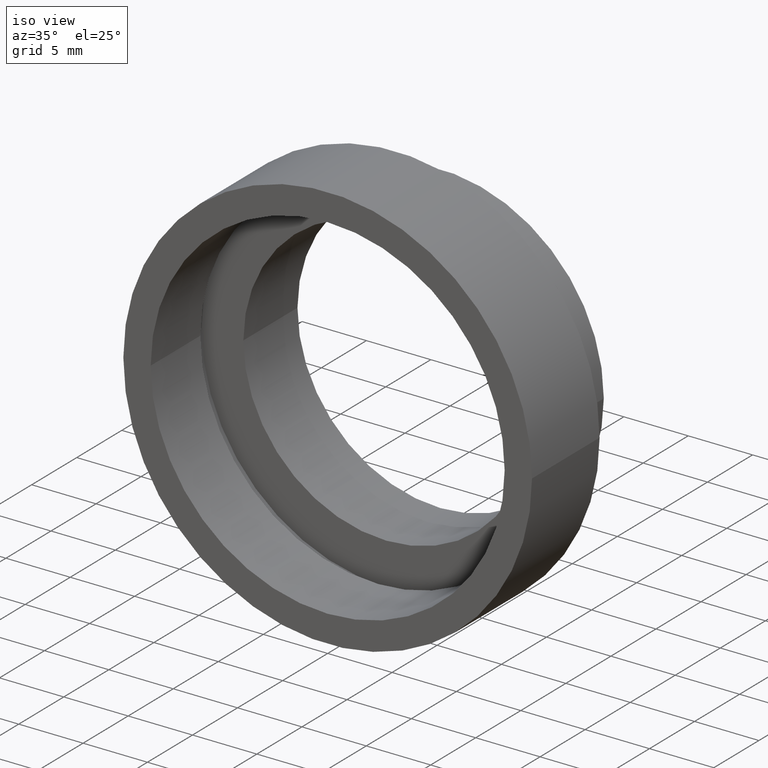
[diagram: clean part render]
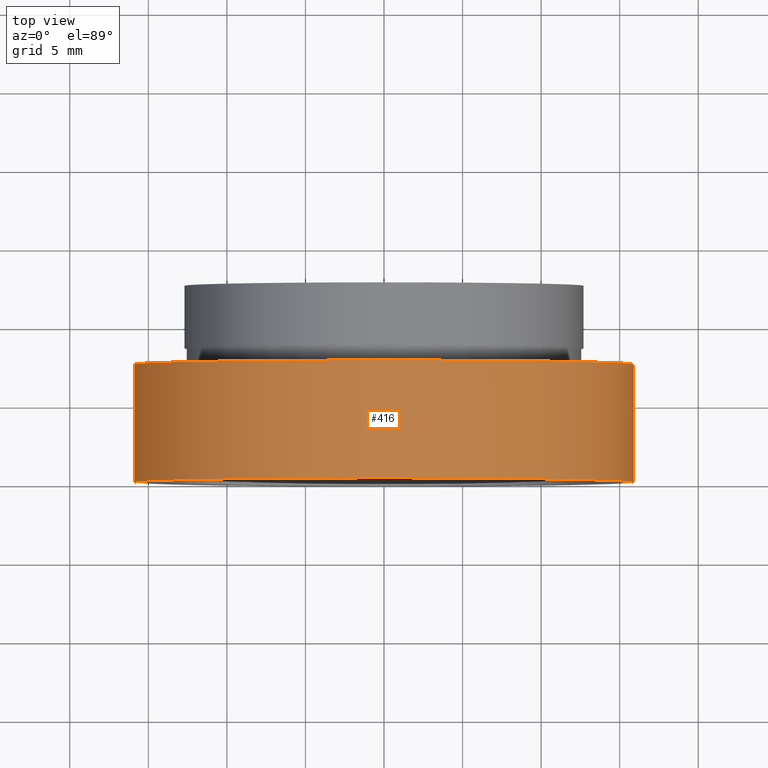
[diagram: tour spotlight — one face highlighted and labeled with its STEP entity id]
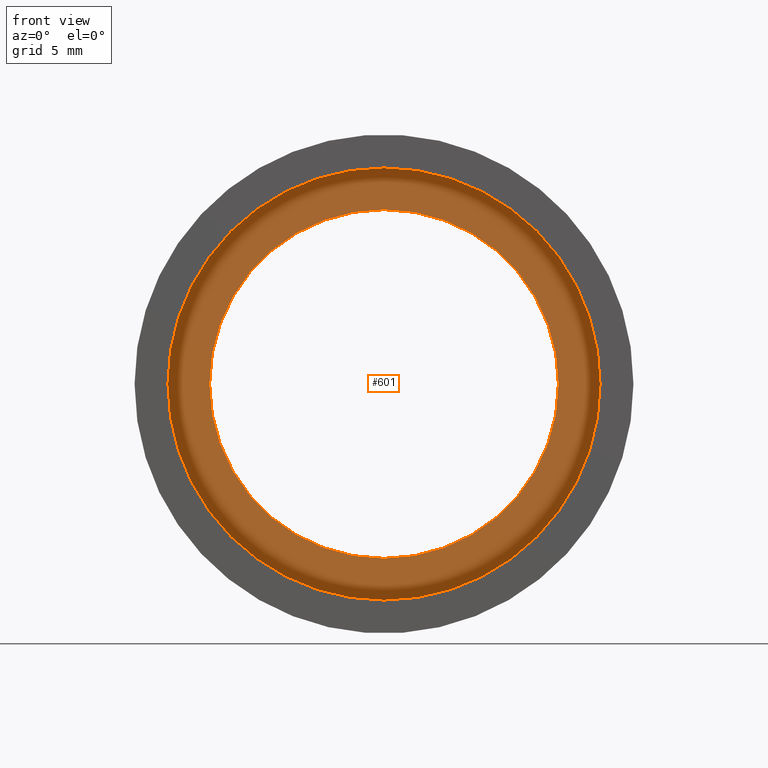
[diagram: tour spotlight — one face highlighted and labeled with its STEP entity id]
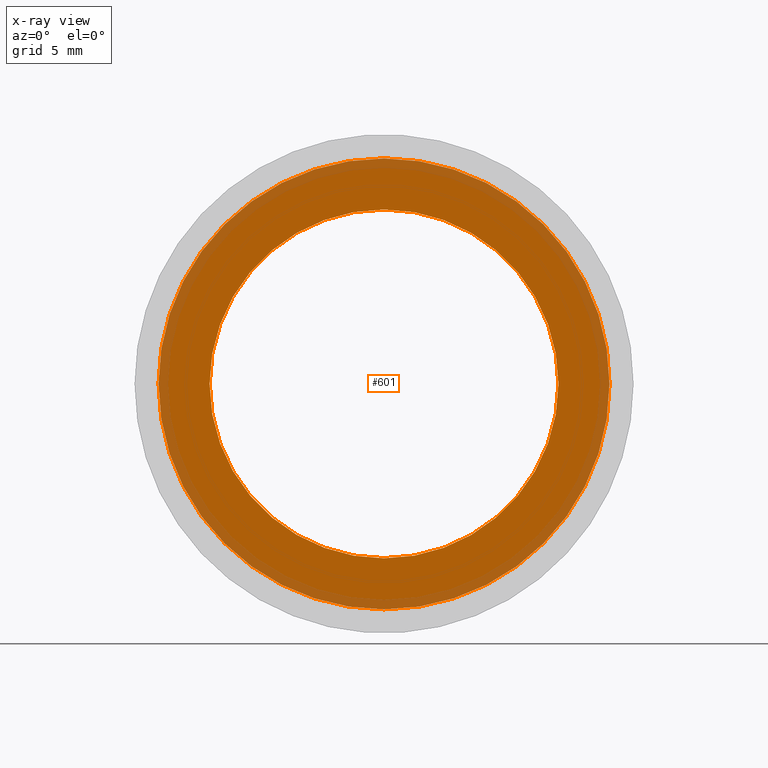
[diagram: x-ray of the same camera — body ghosted, this tour face saturated]
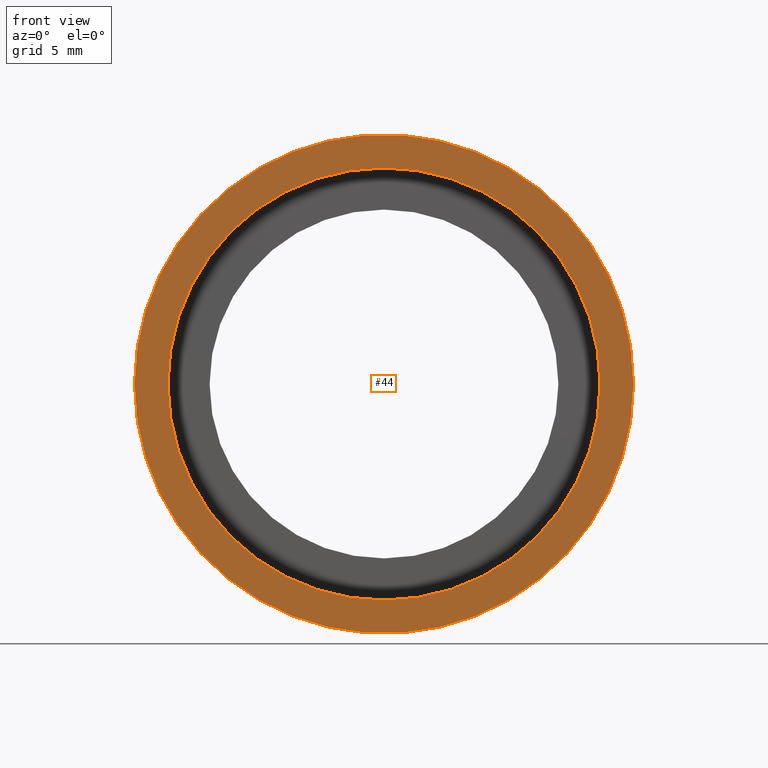
[diagram: tour spotlight — one face highlighted and labeled with its STEP entity id]
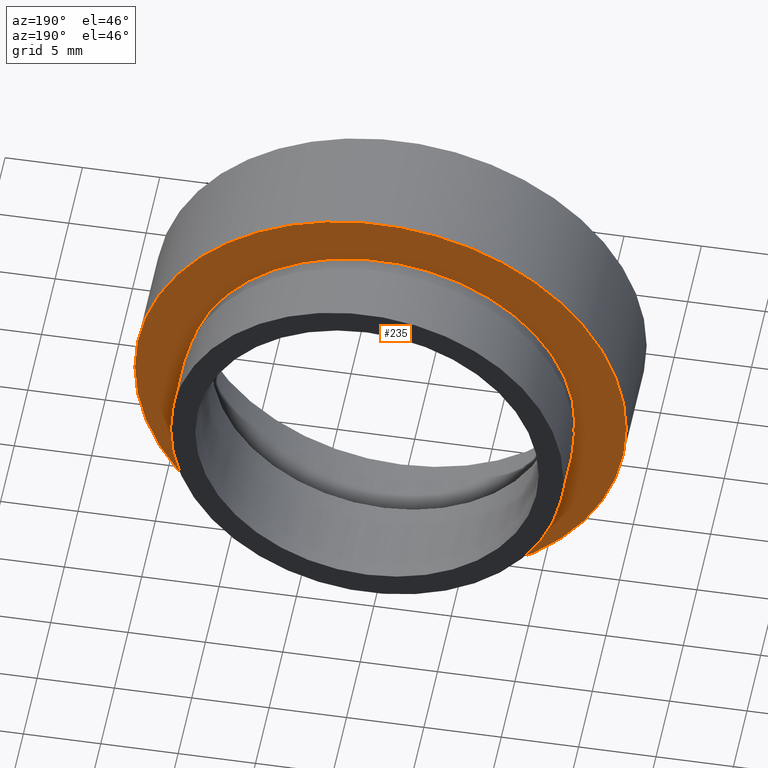
[diagram: tour spotlight — one face highlighted and labeled with its STEP entity id]
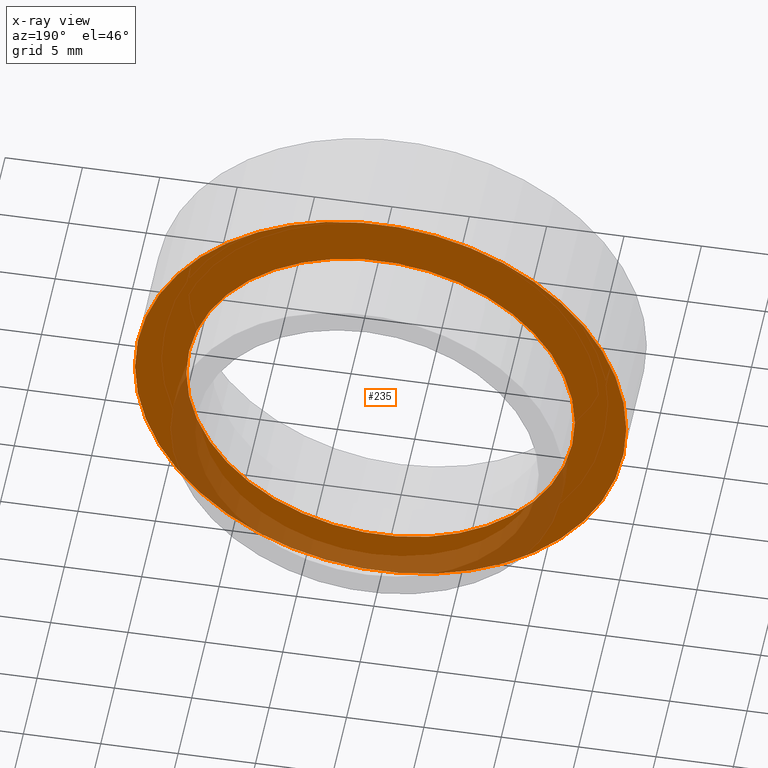
[diagram: x-ray of the same camera — body ghosted, this tour face saturated]
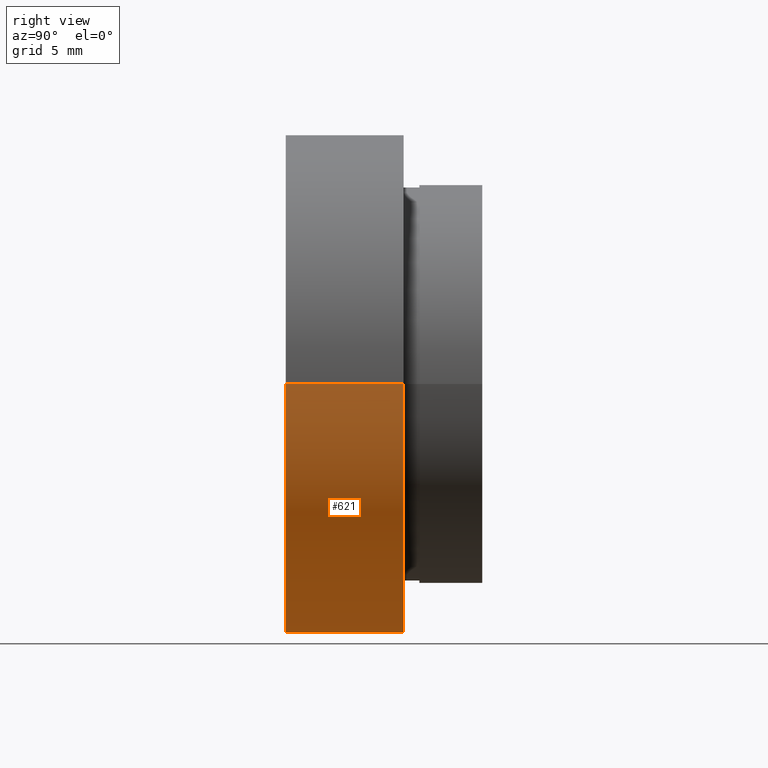
[diagram: tour spotlight — one face highlighted and labeled with its STEP entity id]
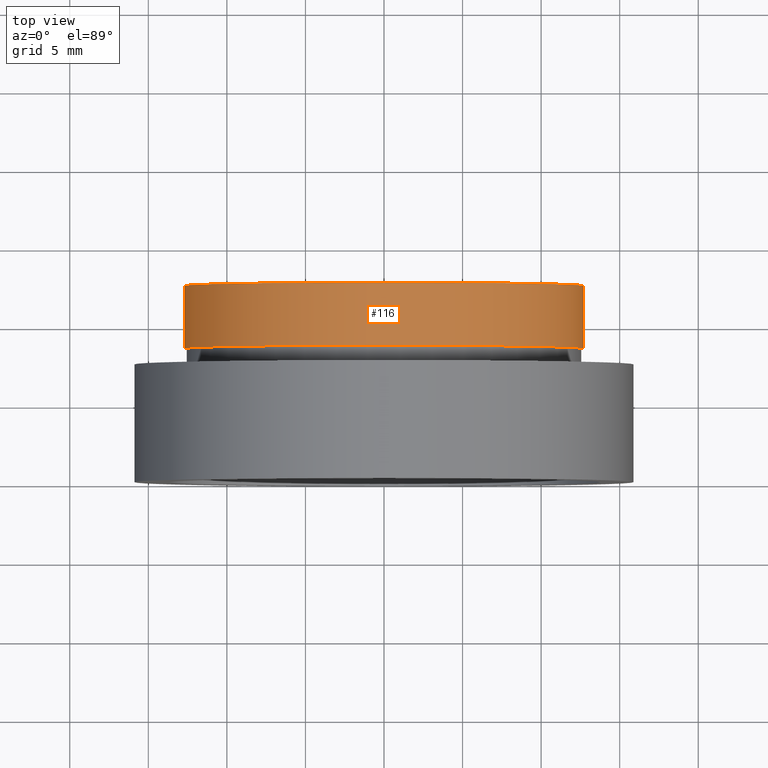
[diagram: tour spotlight — one face highlighted and labeled with its STEP entity id]
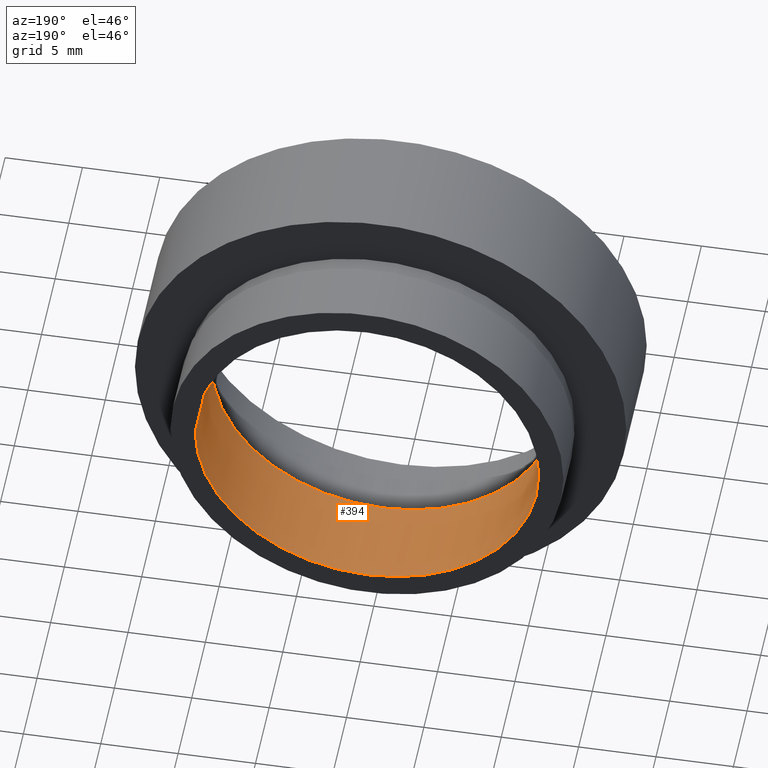
[diagram: tour spotlight — one face highlighted and labeled with its STEP entity id]
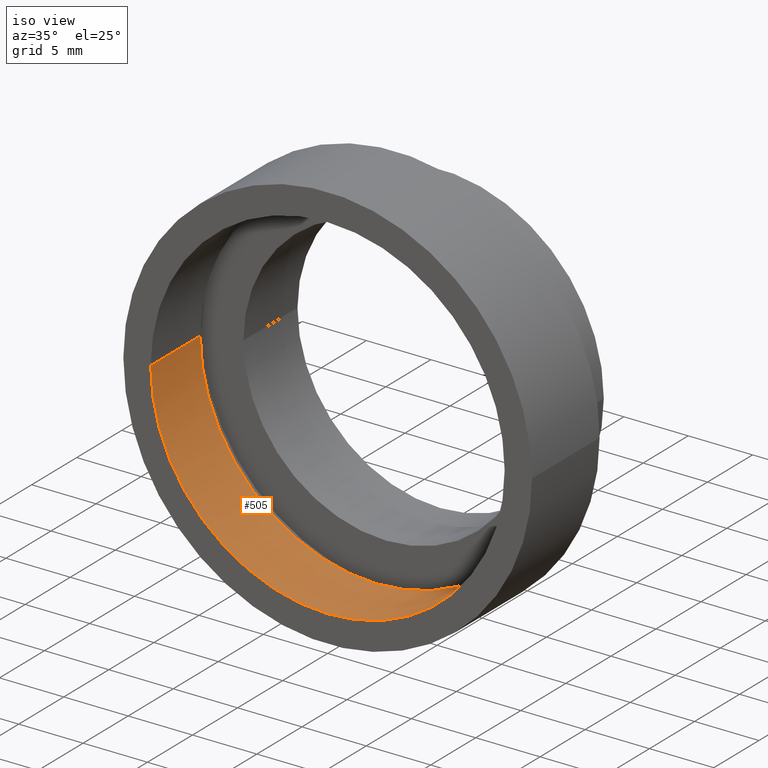
[diagram: tour spotlight — one face highlighted and labeled with its STEP entity id]
A machine part: a face-by-face anatomy tour. The part has 18 B-rep faces; the first image is the clean iso view, then the 8 largest visible faces are spotlighted one at a time (largest first), each with its STEP entity span.

Face 1 — top view, entity #416. In plain terms, the highlighted cylindrical surface (partial cylindrical patch) has radius 15.875 mm, axis along (-0, 1, -0).
Definition (entity closure, byte-faithful):
#27 = DIRECTION ( 'NONE',  ( -1.000000000000000000, -2.185478394931410600E-016, 0.0000000000000000000 ) ) ;
#40 = DIRECTION ( 'NONE',  ( -1.000000000000000000, -1.224646799147350700E-016, 0.0000000000000000000 ) ) ;
#53 = EDGE_CURVE ( 'NONE', #164, #135, #267, .T. ) ;
#74 = DIRECTION ( 'NONE',  ( -1.224646799147351000E-016, 1.000000000000000000, -0.0000000000000000000 ) ) ;
#85 = EDGE_CURVE ( 'NONE', #279, #135, #240, .T. ) ;
#114 = CARTESIAN_POINT ( 'NONE',  ( -15.87500000000000000, 16.88601823708207300, 0.0000000000000000000 ) ) ;
#117 = DIRECTION ( 'NONE',  ( -1.000000000000000000, -1.092739197465705300E-016, 0.0000000000000000000 ) ) ;
#125 = ORIENTED_EDGE ( 'NONE', *, *, #393, .F. ) ;
#135 = VERTEX_POINT ( 'NONE', #606 ) ;
#149 = AXIS2_PLACEMENT_3D ( 'NONE', #559, #324, #117 ) ;
#152 = LINE ( 'NONE', #114, #402 ) ;
#159 = ORIENTED_EDGE ( 'NONE', *, *, #53, .T. ) ;
#164 = VERTEX_POINT ( 'NONE', #445 ) ;
#202 = CARTESIAN_POINT ( 'NONE',  ( 2.067940818438636500E-015, -3.469446951953614200E-015, 0.0000000000000000000 ) ) ;
#228 = CARTESIAN_POINT ( 'NONE',  ( 15.87500000000000000, 16.88601823708208000, 1.944126793646423200E-015 ) ) ;
#233 = ORIENTED_EDGE ( 'NONE', *, *, #85, .F. ) ;
#237 = DIRECTION ( 'NONE',  ( -1.224646799147351000E-016, 1.000000000000000000, -0.0000000000000000000 ) ) ;
#240 = CIRCLE ( 'NONE', #149, 15.87500000000000000 ) ;
#247 = VECTOR ( 'NONE', #237, 1000.000000000000000 ) ;
#267 = LINE ( 'NONE', #228, #247 ) ;
#279 = VERTEX_POINT ( 'NONE', #591 ) ;
#317 = CARTESIAN_POINT ( 'NONE',  ( 0.0000000000000000000, 16.88601823708207700, 0.0000000000000000000 ) ) ;
#324 = DIRECTION ( 'NONE',  ( -1.224646799147351000E-016, 1.000000000000000000, -0.0000000000000000000 ) ) ;
#393 = EDGE_CURVE ( 'NONE', #425, #279, #152, .T. ) ;
#402 = VECTOR ( 'NONE', #491, 1000.000000000000000 ) ;
#416 = ADVANCED_FACE ( 'NONE', ( #462 ), #452, .T. ) ;
#420 = CARTESIAN_POINT ( 'NONE',  ( -15.87499999999999300, -5.413573745600033100E-015, 0.0000000000000000000 ) ) ;
#424 = AXIS2_PLACEMENT_3D ( 'NONE', #317, #534, #27 ) ;
#425 = VERTEX_POINT ( 'NONE', #420 ) ;
#445 = CARTESIAN_POINT ( 'NONE',  ( 15.87500000000000000, -1.525320158307194900E-015, 1.944126793646423200E-015 ) ) ;
#452 = CYLINDRICAL_SURFACE ( 'NONE', #424, 15.87500000000000000 ) ;
#462 = FACE_OUTER_BOUND ( 'NONE', #502, .T. ) ;
#491 = DIRECTION ( 'NONE',  ( -1.224646799147351000E-016, 1.000000000000000000, -0.0000000000000000000 ) ) ;
#502 = EDGE_LOOP ( 'NONE', ( #552, #159, #233, #125 ) ) ;
#508 = CIRCLE ( 'NONE', #547, 15.87499999999999600 ) ;
#514 = EDGE_CURVE ( 'NONE', #425, #164, #508, .T. ) ;
#534 = DIRECTION ( 'NONE',  ( -1.224646799147351000E-016, 1.000000000000000000, -0.0000000000000000000 ) ) ;
#547 = AXIS2_PLACEMENT_3D ( 'NONE', #202, #74, #40 ) ;
#552 = ORIENTED_EDGE ( 'NONE', *, *, #514, .T. ) ;
#559 = CARTESIAN_POINT ( 'NONE',  ( 1.149455719078122700E-015, 7.499999999999998200, 0.0000000000000000000 ) ) ;
#591 = CARTESIAN_POINT ( 'NONE',  ( -15.87500000000000000, 7.499999999999996400, 0.0000000000000000000 ) ) ;
#606 = CARTESIAN_POINT ( 'NONE',  ( 15.87500000000000000, 7.500000000000000000, 1.944126793646423200E-015 ) ) ;

Face 2 — front view, entity #601. An x-ray twin of the same camera follows (body ghosted, this face saturated) — the face is partly hidden behind the body. In plain terms, the highlighted planar face has unit normal (-0, 1, 0).
Definition (entity closure, byte-faithful):
#11 = DIRECTION ( 'NONE',  ( -1.000000000000000000, -1.208866533781747400E-016, 0.0000000000000000000 ) ) ;
#18 = AXIS2_PLACEMENT_3D ( 'NONE', #122, #250, #611 ) ;
#22 = DIRECTION ( 'NONE',  ( -1.000000000000000000, -1.224646799147351000E-016, 0.0000000000000000000 ) ) ;
#29 = VERTEX_POINT ( 'NONE', #560 ) ;
#45 = CARTESIAN_POINT ( 'NONE',  ( 11.10000000000000100, 6.499999999999999100, 1.359357947053562400E-015 ) ) ;
#101 = AXIS2_PLACEMENT_3D ( 'NONE', #307, #457, #11 ) ;
#110 = EDGE_LOOP ( 'NONE', ( #263, #294 ) ) ;
#115 = CIRCLE ( 'NONE', #101, 14.34999999999999800 ) ;
#118 = FACE_BOUND ( 'NONE', #110, .T. ) ;
#122 = CARTESIAN_POINT ( 'NONE',  ( 1.271920398992858000E-015, 6.499999999999997300, 0.0000000000000000000 ) ) ;
#150 = VERTEX_POINT ( 'NONE', #480 ) ;
#160 = DIRECTION ( 'NONE',  ( -1.224646799147351000E-016, 1.000000000000000000, -0.0000000000000000000 ) ) ;
#172 = DIRECTION ( 'NONE',  ( -1.224646799147351000E-016, 1.000000000000000000, 0.0000000000000000000 ) ) ;
#178 = DIRECTION ( 'NONE',  ( -1.000000000000000000, -1.208866533781747400E-016, 0.0000000000000000000 ) ) ;
#207 = ORIENTED_EDGE ( 'NONE', *, *, #215, .F. ) ;
#210 = CIRCLE ( 'NONE', #465, 11.10000000000000000 ) ;
#215 = EDGE_CURVE ( 'NONE', #486, #150, #538, .T. ) ;
#236 = DIRECTION ( 'NONE',  ( -1.000000000000000000, -1.562813942321447800E-016, 0.0000000000000000000 ) ) ;
#250 = DIRECTION ( 'NONE',  ( -1.224646799147351000E-016, 1.000000000000000000, -0.0000000000000000000 ) ) ;
#252 = FACE_OUTER_BOUND ( 'NONE', #579, .T. ) ;
#263 = ORIENTED_EDGE ( 'NONE', *, *, #466, .T. ) ;
#269 = EDGE_CURVE ( 'NONE', #150, #486, #115, .T. ) ;
#294 = ORIENTED_EDGE ( 'NONE', *, *, #409, .T. ) ;
#307 = CARTESIAN_POINT ( 'NONE',  ( 1.271920398992858000E-015, 6.499999999999997300, 0.0000000000000000000 ) ) ;
#322 = VERTEX_POINT ( 'NONE', #45 ) ;
#323 = ORIENTED_EDGE ( 'NONE', *, *, #269, .F. ) ;
#337 = DIRECTION ( 'NONE',  ( -1.224646799147351000E-016, 1.000000000000000000, -0.0000000000000000000 ) ) ;
#347 = CIRCLE ( 'NONE', #18, 11.10000000000000000 ) ;
#362 = CARTESIAN_POINT ( 'NONE',  ( 1.271920398992858000E-015, 6.499999999999997300, 0.0000000000000000000 ) ) ;
#389 = CARTESIAN_POINT ( 'NONE',  ( 1.271920398992858000E-015, 6.499999999999997300, 0.0000000000000000000 ) ) ;
#395 = PLANE ( 'NONE',  #437 ) ;
#407 = CARTESIAN_POINT ( 'NONE',  ( 11.10000000000000100, 6.499999999999999100, 0.0000000000000000000 ) ) ;
#409 = EDGE_CURVE ( 'NONE', #322, #29, #347, .T. ) ;
#437 = AXIS2_PLACEMENT_3D ( 'NONE', #407, #172, #22 ) ;
#457 = DIRECTION ( 'NONE',  ( -1.224646799147351000E-016, 1.000000000000000000, -0.0000000000000000000 ) ) ;
#465 = AXIS2_PLACEMENT_3D ( 'NONE', #389, #160, #236 ) ;
#466 = EDGE_CURVE ( 'NONE', #29, #322, #210, .T. ) ;
#480 = CARTESIAN_POINT ( 'NONE',  ( -14.34999999999999600, 6.499999999999995600, 0.0000000000000000000 ) ) ;
#486 = VERTEX_POINT ( 'NONE', #609 ) ;
#488 = AXIS2_PLACEMENT_3D ( 'NONE', #362, #337, #178 ) ;
#538 = CIRCLE ( 'NONE', #488, 14.34999999999999800 ) ;
#560 = CARTESIAN_POINT ( 'NONE',  ( -11.09999999999999800, 6.499999999999995600, 0.0000000000000000000 ) ) ;
#579 = EDGE_LOOP ( 'NONE', ( #323, #207 ) ) ;
#601 = ADVANCED_FACE ( 'NONE', ( #252, #118 ), #395, .F. ) ;
#609 = CARTESIAN_POINT ( 'NONE',  ( 14.35000000000000000, 6.499999999999999100, 1.757368156776451600E-015 ) ) ;
#611 = DIRECTION ( 'NONE',  ( -1.000000000000000000, -1.562813942321447800E-016, 0.0000000000000000000 ) ) ;

Face 3 — front view, entity #44. In plain terms, the highlighted planar face has unit normal (-0, 1, 0).
Definition (entity closure, byte-faithful):
#23 = AXIS2_PLACEMENT_3D ( 'NONE', #136, #145, #94 ) ;
#28 = CIRCLE ( 'NONE', #23, 13.75000000000000200 ) ;
#39 = ORIENTED_EDGE ( 'NONE', *, *, #211, .T. ) ;
#40 = DIRECTION ( 'NONE',  ( -1.000000000000000000, -1.224646799147350700E-016, 0.0000000000000000000 ) ) ;
#44 = ADVANCED_FACE ( 'NONE', ( #329, #216 ), #435, .F. ) ;
#54 = CARTESIAN_POINT ( 'NONE',  ( 15.87500000000000000, -3.035621465847962700E-016, 0.0000000000000000000 ) ) ;
#74 = DIRECTION ( 'NONE',  ( -1.224646799147351000E-016, 1.000000000000000000, -0.0000000000000000000 ) ) ;
#84 = DIRECTION ( 'NONE',  ( -1.000000000000000000, -1.224646799147351000E-016, 0.0000000000000000000 ) ) ;
#94 = DIRECTION ( 'NONE',  ( -1.000000000000000000, -1.224646799147351000E-016, 0.0000000000000000000 ) ) ;
#97 = CIRCLE ( 'NONE', #156, 15.87499999999999600 ) ;
#102 = DIRECTION ( 'NONE',  ( -1.000000000000000000, -1.224646799147350700E-016, 0.0000000000000000000 ) ) ;
#107 = CARTESIAN_POINT ( 'NONE',  ( 13.75000000000000400, 1.683889348827607900E-015, 1.683889348827611000E-015 ) ) ;
#136 = CARTESIAN_POINT ( 'NONE',  ( 2.067940818438636100E-015, 0.0000000000000000000, 0.0000000000000000000 ) ) ;
#145 = DIRECTION ( 'NONE',  ( -1.224646799147351000E-016, 1.000000000000000000, -0.0000000000000000000 ) ) ;
#156 = AXIS2_PLACEMENT_3D ( 'NONE', #278, #334, #102 ) ;
#157 = EDGE_LOOP ( 'NONE', ( #454, #39 ) ) ;
#164 = VERTEX_POINT ( 'NONE', #445 ) ;
#166 = DIRECTION ( 'NONE',  ( -1.000000000000000000, -1.224646799147351000E-016, 0.0000000000000000000 ) ) ;
#169 = AXIS2_PLACEMENT_3D ( 'NONE', #170, #328, #166 ) ;
#170 = CARTESIAN_POINT ( 'NONE',  ( 2.067940818438636100E-015, 0.0000000000000000000, 0.0000000000000000000 ) ) ;
#202 = CARTESIAN_POINT ( 'NONE',  ( 2.067940818438636500E-015, -3.469446951953614200E-015, 0.0000000000000000000 ) ) ;
#211 = EDGE_CURVE ( 'NONE', #304, #492, #28, .T. ) ;
#216 = FACE_BOUND ( 'NONE', #157, .T. ) ;
#278 = CARTESIAN_POINT ( 'NONE',  ( 2.067940818438636500E-015, -3.469446951953614200E-015, 0.0000000000000000000 ) ) ;
#288 = EDGE_LOOP ( 'NONE', ( #449, #350 ) ) ;
#304 = VERTEX_POINT ( 'NONE', #107 ) ;
#328 = DIRECTION ( 'NONE',  ( -1.224646799147351000E-016, 1.000000000000000000, -0.0000000000000000000 ) ) ;
#329 = FACE_OUTER_BOUND ( 'NONE', #288, .T. ) ;
#334 = DIRECTION ( 'NONE',  ( -1.224646799147351000E-016, 1.000000000000000000, -0.0000000000000000000 ) ) ;
#350 = ORIENTED_EDGE ( 'NONE', *, *, #438, .F. ) ;
#420 = CARTESIAN_POINT ( 'NONE',  ( -15.87499999999999300, -5.413573745600033100E-015, 0.0000000000000000000 ) ) ;
#425 = VERTEX_POINT ( 'NONE', #420 ) ;
#434 = CIRCLE ( 'NONE', #169, 13.75000000000000200 ) ;
#435 = PLANE ( 'NONE',  #574 ) ;
#438 = EDGE_CURVE ( 'NONE', #164, #425, #97, .T. ) ;
#445 = CARTESIAN_POINT ( 'NONE',  ( 15.87500000000000000, -1.525320158307194900E-015, 1.944126793646423200E-015 ) ) ;
#449 = ORIENTED_EDGE ( 'NONE', *, *, #514, .F. ) ;
#454 = ORIENTED_EDGE ( 'NONE', *, *, #478, .T. ) ;
#478 = EDGE_CURVE ( 'NONE', #492, #304, #434, .T. ) ;
#492 = VERTEX_POINT ( 'NONE', #527 ) ;
#508 = CIRCLE ( 'NONE', #547, 15.87499999999999600 ) ;
#514 = EDGE_CURVE ( 'NONE', #425, #164, #508, .T. ) ;
#527 = CARTESIAN_POINT ( 'NONE',  ( -13.75000000000000000, -1.683889348827607900E-015, 0.0000000000000000000 ) ) ;
#547 = AXIS2_PLACEMENT_3D ( 'NONE', #202, #74, #40 ) ;
#574 = AXIS2_PLACEMENT_3D ( 'NONE', #54, #589, #84 ) ;
#589 = DIRECTION ( 'NONE',  ( -1.224646799147351000E-016, 1.000000000000000000, 0.0000000000000000000 ) ) ;

Face 4 — auxiliary view, entity #235. An x-ray twin of the same camera follows (body ghosted, this face saturated) — the face is partly hidden behind the body. In plain terms, the highlighted planar face has unit normal (0, -1, 0).
Definition (entity closure, byte-faithful):
#25 = ORIENTED_EDGE ( 'NONE', *, *, #433, .F. ) ;
#83 = DIRECTION ( 'NONE',  ( 1.224646799147351000E-016, -1.000000000000000000, 0.0000000000000000000 ) ) ;
#85 = EDGE_CURVE ( 'NONE', #279, #135, #240, .T. ) ;
#105 = DIRECTION ( 'NONE',  ( -1.000000000000000000, -1.382249781654826400E-016, 0.0000000000000000000 ) ) ;
#113 = CIRCLE ( 'NONE', #306, 12.55000000000000100 ) ;
#117 = DIRECTION ( 'NONE',  ( -1.000000000000000000, -1.092739197465705300E-016, 0.0000000000000000000 ) ) ;
#128 = ORIENTED_EDGE ( 'NONE', *, *, #182, .F. ) ;
#129 = AXIS2_PLACEMENT_3D ( 'NONE', #410, #83, #246 ) ;
#135 = VERTEX_POINT ( 'NONE', #606 ) ;
#141 = EDGE_LOOP ( 'NONE', ( #550, #209 ) ) ;
#149 = AXIS2_PLACEMENT_3D ( 'NONE', #559, #324, #117 ) ;
#168 = FACE_BOUND ( 'NONE', #364, .T. ) ;
#173 = VERTEX_POINT ( 'NONE', #582 ) ;
#182 = EDGE_CURVE ( 'NONE', #200, #173, #272, .T. ) ;
#200 = VERTEX_POINT ( 'NONE', #320 ) ;
#209 = ORIENTED_EDGE ( 'NONE', *, *, #419, .T. ) ;
#226 = PLANE ( 'NONE',  #129 ) ;
#235 = ADVANCED_FACE ( 'NONE', ( #168, #260 ), #226, .F. ) ;
#240 = CIRCLE ( 'NONE', #149, 15.87500000000000000 ) ;
#242 = CARTESIAN_POINT ( 'NONE',  ( 1.149455719078122700E-015, 7.499999999999998200, 0.0000000000000000000 ) ) ;
#246 = DIRECTION ( 'NONE',  ( 1.000000000000000000, 1.224646799147351000E-016, 0.0000000000000000000 ) ) ;
#260 = FACE_OUTER_BOUND ( 'NONE', #141, .T. ) ;
#272 = CIRCLE ( 'NONE', #529, 12.55000000000000100 ) ;
#279 = VERTEX_POINT ( 'NONE', #591 ) ;
#289 = AXIS2_PLACEMENT_3D ( 'NONE', #242, #554, #499 ) ;
#306 = AXIS2_PLACEMENT_3D ( 'NONE', #356, #585, #456 ) ;
#311 = CARTESIAN_POINT ( 'NONE',  ( 1.149455719078122700E-015, 7.499999999999998200, 0.0000000000000000000 ) ) ;
#320 = CARTESIAN_POINT ( 'NONE',  ( 12.55000000000000200, 7.500000000000000000, 1.536931732929928400E-015 ) ) ;
#324 = DIRECTION ( 'NONE',  ( -1.224646799147351000E-016, 1.000000000000000000, -0.0000000000000000000 ) ) ;
#356 = CARTESIAN_POINT ( 'NONE',  ( 1.149455719078122700E-015, 7.499999999999998200, 0.0000000000000000000 ) ) ;
#364 = EDGE_LOOP ( 'NONE', ( #25, #128 ) ) ;
#410 = CARTESIAN_POINT ( 'NONE',  ( 12.55000000000000200, 7.500000000000000000, 0.0000000000000000000 ) ) ;
#419 = EDGE_CURVE ( 'NONE', #135, #279, #595, .T. ) ;
#433 = EDGE_CURVE ( 'NONE', #173, #200, #113, .T. ) ;
#456 = DIRECTION ( 'NONE',  ( -1.000000000000000000, -1.382249781654826400E-016, 0.0000000000000000000 ) ) ;
#499 = DIRECTION ( 'NONE',  ( -1.000000000000000000, -1.092739197465705300E-016, 0.0000000000000000000 ) ) ;
#520 = DIRECTION ( 'NONE',  ( -1.224646799147351000E-016, 1.000000000000000000, -0.0000000000000000000 ) ) ;
#529 = AXIS2_PLACEMENT_3D ( 'NONE', #311, #520, #105 ) ;
#550 = ORIENTED_EDGE ( 'NONE', *, *, #85, .T. ) ;
#554 = DIRECTION ( 'NONE',  ( -1.224646799147351000E-016, 1.000000000000000000, -0.0000000000000000000 ) ) ;
#559 = CARTESIAN_POINT ( 'NONE',  ( 1.149455719078122700E-015, 7.499999999999998200, 0.0000000000000000000 ) ) ;
#582 = CARTESIAN_POINT ( 'NONE',  ( -12.54999999999999900, 7.499999999999996400, 0.0000000000000000000 ) ) ;
#585 = DIRECTION ( 'NONE',  ( -1.224646799147351000E-016, 1.000000000000000000, -0.0000000000000000000 ) ) ;
#591 = CARTESIAN_POINT ( 'NONE',  ( -15.87500000000000000, 7.499999999999996400, 0.0000000000000000000 ) ) ;
#595 = CIRCLE ( 'NONE', #289, 15.87500000000000000 ) ;
#606 = CARTESIAN_POINT ( 'NONE',  ( 15.87500000000000000, 7.500000000000000000, 1.944126793646423200E-015 ) ) ;

Face 5 — right view, entity #621. In plain terms, the highlighted cylindrical surface (partial cylindrical patch) has radius 15.875 mm, axis along (-0, 1, -0).
Definition (entity closure, byte-faithful):
#53 = EDGE_CURVE ( 'NONE', #164, #135, #267, .T. ) ;
#97 = CIRCLE ( 'NONE', #156, 15.87499999999999600 ) ;
#102 = DIRECTION ( 'NONE',  ( -1.000000000000000000, -1.224646799147350700E-016, 0.0000000000000000000 ) ) ;
#104 = CYLINDRICAL_SURFACE ( 'NONE', #417, 15.87500000000000000 ) ;
#114 = CARTESIAN_POINT ( 'NONE',  ( -15.87500000000000000, 16.88601823708207300, 0.0000000000000000000 ) ) ;
#135 = VERTEX_POINT ( 'NONE', #606 ) ;
#143 = FACE_OUTER_BOUND ( 'NONE', #558, .T. ) ;
#152 = LINE ( 'NONE', #114, #402 ) ;
#156 = AXIS2_PLACEMENT_3D ( 'NONE', #278, #334, #102 ) ;
#164 = VERTEX_POINT ( 'NONE', #445 ) ;
#228 = CARTESIAN_POINT ( 'NONE',  ( 15.87500000000000000, 16.88601823708208000, 1.944126793646423200E-015 ) ) ;
#237 = DIRECTION ( 'NONE',  ( -1.224646799147351000E-016, 1.000000000000000000, -0.0000000000000000000 ) ) ;
#242 = CARTESIAN_POINT ( 'NONE',  ( 1.149455719078122700E-015, 7.499999999999998200, 0.0000000000000000000 ) ) ;
#247 = VECTOR ( 'NONE', #237, 1000.000000000000000 ) ;
#248 = ORIENTED_EDGE ( 'NONE', *, *, #419, .F. ) ;
#267 = LINE ( 'NONE', #228, #247 ) ;
#278 = CARTESIAN_POINT ( 'NONE',  ( 2.067940818438636500E-015, -3.469446951953614200E-015, 0.0000000000000000000 ) ) ;
#279 = VERTEX_POINT ( 'NONE', #591 ) ;
#289 = AXIS2_PLACEMENT_3D ( 'NONE', #242, #554, #499 ) ;
#302 = DIRECTION ( 'NONE',  ( -1.224646799147351000E-016, 1.000000000000000000, -0.0000000000000000000 ) ) ;
#334 = DIRECTION ( 'NONE',  ( -1.224646799147351000E-016, 1.000000000000000000, -0.0000000000000000000 ) ) ;
#393 = EDGE_CURVE ( 'NONE', #425, #279, #152, .T. ) ;
#402 = VECTOR ( 'NONE', #491, 1000.000000000000000 ) ;
#406 = CARTESIAN_POINT ( 'NONE',  ( 0.0000000000000000000, 16.88601823708207700, 0.0000000000000000000 ) ) ;
#417 = AXIS2_PLACEMENT_3D ( 'NONE', #406, #302, #553 ) ;
#419 = EDGE_CURVE ( 'NONE', #135, #279, #595, .T. ) ;
#420 = CARTESIAN_POINT ( 'NONE',  ( -15.87499999999999300, -5.413573745600033100E-015, 0.0000000000000000000 ) ) ;
#425 = VERTEX_POINT ( 'NONE', #420 ) ;
#438 = EDGE_CURVE ( 'NONE', #164, #425, #97, .T. ) ;
#445 = CARTESIAN_POINT ( 'NONE',  ( 15.87500000000000000, -1.525320158307194900E-015, 1.944126793646423200E-015 ) ) ;
#491 = DIRECTION ( 'NONE',  ( -1.224646799147351000E-016, 1.000000000000000000, -0.0000000000000000000 ) ) ;
#499 = DIRECTION ( 'NONE',  ( -1.000000000000000000, -1.092739197465705300E-016, 0.0000000000000000000 ) ) ;
#543 = ORIENTED_EDGE ( 'NONE', *, *, #53, .F. ) ;
#545 = ORIENTED_EDGE ( 'NONE', *, *, #438, .T. ) ;
#553 = DIRECTION ( 'NONE',  ( -1.000000000000000000, -2.185478394931410600E-016, 0.0000000000000000000 ) ) ;
#554 = DIRECTION ( 'NONE',  ( -1.224646799147351000E-016, 1.000000000000000000, -0.0000000000000000000 ) ) ;
#558 = EDGE_LOOP ( 'NONE', ( #543, #545, #615, #248 ) ) ;
#591 = CARTESIAN_POINT ( 'NONE',  ( -15.87500000000000000, 7.499999999999996400, 0.0000000000000000000 ) ) ;
#595 = CIRCLE ( 'NONE', #289, 15.87500000000000000 ) ;
#606 = CARTESIAN_POINT ( 'NONE',  ( 15.87500000000000000, 7.500000000000000000, 1.944126793646423200E-015 ) ) ;
#615 = ORIENTED_EDGE ( 'NONE', *, *, #393, .T. ) ;
#621 = ADVANCED_FACE ( 'NONE', ( #143 ), #104, .T. ) ;

Face 6 — top view, entity #116. In plain terms, the highlighted cylindrical surface (partial cylindrical patch) has radius 12.7 mm, axis along (-0, 1, -0).
Definition (entity closure, byte-faithful):
#8 = DIRECTION ( 'NONE',  ( -1.224646799147351000E-016, 1.000000000000000000, -0.0000000000000000000 ) ) ;
#36 = CARTESIAN_POINT ( 'NONE',  ( 0.0000000000000000000, 16.88601823708207700, 0.0000000000000000000 ) ) ;
#56 = DIRECTION ( 'NONE',  ( -1.224646799147351000E-016, 1.000000000000000000, -0.0000000000000000000 ) ) ;
#108 = DIRECTION ( 'NONE',  ( -1.224646799147351000E-016, 1.000000000000000000, -0.0000000000000000000 ) ) ;
#109 = AXIS2_PLACEMENT_3D ( 'NONE', #516, #56, #258 ) ;
#116 = ADVANCED_FACE ( 'NONE', ( #119 ), #189, .T. ) ;
#119 = FACE_OUTER_BOUND ( 'NONE', #583, .T. ) ;
#138 = AXIS2_PLACEMENT_3D ( 'NONE', #36, #108, #613 ) ;
#140 = ORIENTED_EDGE ( 'NONE', *, *, #567, .F. ) ;
#189 = CYLINDRICAL_SURFACE ( 'NONE', #138, 12.69999999999999900 ) ;
#208 = CARTESIAN_POINT ( 'NONE',  ( -12.69999999999999600, 8.499999999999996400, 0.0000000000000000000 ) ) ;
#223 = ORIENTED_EDGE ( 'NONE', *, *, #473, .F. ) ;
#239 = VECTOR ( 'NONE', #358, 1000.000000000000000 ) ;
#249 = DIRECTION ( 'NONE',  ( -1.000000000000000000, -1.365923996832131900E-016, 0.0000000000000000000 ) ) ;
#258 = DIRECTION ( 'NONE',  ( -1.000000000000000000, -1.365923996832131600E-016, 0.0000000000000000000 ) ) ;
#259 = CARTESIAN_POINT ( 'NONE',  ( -12.69999999999999900, 16.88601823708207700, 0.0000000000000000000 ) ) ;
#286 = CARTESIAN_POINT ( 'NONE',  ( 12.69999999999999900, 12.49999999999999800, 1.555301434917138400E-015 ) ) ;
#290 = EDGE_CURVE ( 'NONE', #331, #556, #597, .T. ) ;
#298 = EDGE_CURVE ( 'NONE', #556, #338, #624, .T. ) ;
#299 = VERTEX_POINT ( 'NONE', #555 ) ;
#300 = CARTESIAN_POINT ( 'NONE',  ( 12.69999999999999900, 8.500000000000000000, 1.555301434917138400E-015 ) ) ;
#331 = VERTEX_POINT ( 'NONE', #208 ) ;
#338 = VERTEX_POINT ( 'NONE', #286 ) ;
#358 = DIRECTION ( 'NONE',  ( -1.224646799147351000E-016, 1.000000000000000000, -0.0000000000000000000 ) ) ;
#368 = VECTOR ( 'NONE', #8, 1000.000000000000000 ) ;
#383 = CARTESIAN_POINT ( 'NONE',  ( 12.69999999999999900, 16.88601823708207700, 1.555301434917138400E-015 ) ) ;
#473 = EDGE_CURVE ( 'NONE', #299, #338, #580, .T. ) ;
#489 = LINE ( 'NONE', #259, #368 ) ;
#516 = CARTESIAN_POINT ( 'NONE',  ( 5.371323195044474300E-016, 12.49999999999999600, 0.0000000000000000000 ) ) ;
#546 = DIRECTION ( 'NONE',  ( -1.224646799147351000E-016, 1.000000000000000000, -0.0000000000000000000 ) ) ;
#551 = AXIS2_PLACEMENT_3D ( 'NONE', #564, #546, #249 ) ;
#555 = CARTESIAN_POINT ( 'NONE',  ( -12.69999999999999900, 12.49999999999999500, 0.0000000000000000000 ) ) ;
#556 = VERTEX_POINT ( 'NONE', #300 ) ;
#564 = CARTESIAN_POINT ( 'NONE',  ( 1.026991039163387700E-015, 8.499999999999998200, 0.0000000000000000000 ) ) ;
#567 = EDGE_CURVE ( 'NONE', #331, #299, #489, .T. ) ;
#580 = CIRCLE ( 'NONE', #109, 12.69999999999999900 ) ;
#583 = EDGE_LOOP ( 'NONE', ( #586, #599, #223, #140 ) ) ;
#586 = ORIENTED_EDGE ( 'NONE', *, *, #290, .T. ) ;
#597 = CIRCLE ( 'NONE', #551, 12.69999999999999800 ) ;
#599 = ORIENTED_EDGE ( 'NONE', *, *, #298, .T. ) ;
#613 = DIRECTION ( 'NONE',  ( -1.000000000000000000, 0.0000000000000000000, 0.0000000000000000000 ) ) ;
#624 = LINE ( 'NONE', #383, #239 ) ;

Face 7 — auxiliary view, entity #394. In plain terms, the highlighted cylindrical surface (partial cylindrical patch) has radius 11.1 mm, axis along (-0, 1, -0).
Definition (entity closure, byte-faithful):
#16 = CARTESIAN_POINT ( 'NONE',  ( 11.10000000000000100, 16.88601823708207700, 1.359357947053562400E-015 ) ) ;
#18 = AXIS2_PLACEMENT_3D ( 'NONE', #122, #250, #611 ) ;
#21 = DIRECTION ( 'NONE',  ( -1.000000000000000000, 0.0000000000000000000, 0.0000000000000000000 ) ) ;
#29 = VERTEX_POINT ( 'NONE', #560 ) ;
#35 = CIRCLE ( 'NONE', #359, 11.10000000000000100 ) ;
#38 = CARTESIAN_POINT ( 'NONE',  ( -11.10000000000000100, 12.49999999999999500, 0.0000000000000000000 ) ) ;
#41 = EDGE_LOOP ( 'NONE', ( #447, #542, #523, #432 ) ) ;
#45 = CARTESIAN_POINT ( 'NONE',  ( 11.10000000000000100, 6.499999999999999100, 1.359357947053562400E-015 ) ) ;
#60 = CARTESIAN_POINT ( 'NONE',  ( 0.0000000000000000000, 16.88601823708207700, 0.0000000000000000000 ) ) ;
#77 = VERTEX_POINT ( 'NONE', #515 ) ;
#103 = CARTESIAN_POINT ( 'NONE',  ( -11.10000000000000100, 16.88601823708207700, 0.0000000000000000000 ) ) ;
#122 = CARTESIAN_POINT ( 'NONE',  ( 1.271920398992858000E-015, 6.499999999999997300, 0.0000000000000000000 ) ) ;
#132 = EDGE_CURVE ( 'NONE', #322, #77, #490, .T. ) ;
#177 = EDGE_CURVE ( 'NONE', #77, #483, #35, .T. ) ;
#187 = DIRECTION ( 'NONE',  ( -1.224646799147351000E-016, 1.000000000000000000, -0.0000000000000000000 ) ) ;
#204 = CARTESIAN_POINT ( 'NONE',  ( 5.371323195044474300E-016, 12.49999999999999600, 0.0000000000000000000 ) ) ;
#225 = CYLINDRICAL_SURFACE ( 'NONE', #484, 11.10000000000000100 ) ;
#230 = DIRECTION ( 'NONE',  ( -1.000000000000000000, -1.562813942321447500E-016, 0.0000000000000000000 ) ) ;
#250 = DIRECTION ( 'NONE',  ( -1.224646799147351000E-016, 1.000000000000000000, -0.0000000000000000000 ) ) ;
#284 = FACE_OUTER_BOUND ( 'NONE', #41, .T. ) ;
#303 = EDGE_CURVE ( 'NONE', #29, #483, #497, .T. ) ;
#312 = DIRECTION ( 'NONE',  ( -1.224646799147351000E-016, 1.000000000000000000, -0.0000000000000000000 ) ) ;
#322 = VERTEX_POINT ( 'NONE', #45 ) ;
#336 = DIRECTION ( 'NONE',  ( -1.224646799147351000E-016, 1.000000000000000000, -0.0000000000000000000 ) ) ;
#347 = CIRCLE ( 'NONE', #18, 11.10000000000000000 ) ;
#359 = AXIS2_PLACEMENT_3D ( 'NONE', #204, #312, #230 ) ;
#394 = ADVANCED_FACE ( 'NONE', ( #284 ), #225, .F. ) ;
#409 = EDGE_CURVE ( 'NONE', #322, #29, #347, .T. ) ;
#432 = ORIENTED_EDGE ( 'NONE', *, *, #303, .F. ) ;
#439 = VECTOR ( 'NONE', #187, 1000.000000000000000 ) ;
#447 = ORIENTED_EDGE ( 'NONE', *, *, #409, .F. ) ;
#458 = VECTOR ( 'NONE', #477, 1000.000000000000000 ) ;
#477 = DIRECTION ( 'NONE',  ( -1.224646799147351000E-016, 1.000000000000000000, -0.0000000000000000000 ) ) ;
#483 = VERTEX_POINT ( 'NONE', #38 ) ;
#484 = AXIS2_PLACEMENT_3D ( 'NONE', #60, #336, #21 ) ;
#490 = LINE ( 'NONE', #16, #439 ) ;
#497 = LINE ( 'NONE', #103, #458 ) ;
#515 = CARTESIAN_POINT ( 'NONE',  ( 11.10000000000000100, 12.49999999999999800, 1.359357947053562400E-015 ) ) ;
#523 = ORIENTED_EDGE ( 'NONE', *, *, #177, .T. ) ;
#542 = ORIENTED_EDGE ( 'NONE', *, *, #132, .T. ) ;
#560 = CARTESIAN_POINT ( 'NONE',  ( -11.09999999999999800, 6.499999999999995600, 0.0000000000000000000 ) ) ;
#611 = DIRECTION ( 'NONE',  ( -1.000000000000000000, -1.562813942321447800E-016, 0.0000000000000000000 ) ) ;

Face 8 — iso view, entity #505. In plain terms, the highlighted cylindrical surface (partial cylindrical patch) has radius 13.75 mm, axis along (-0, 1, -0).
Definition (entity closure, byte-faithful):
#3 = ORIENTED_EDGE ( 'NONE', *, *, #251, .F. ) ;
#23 = AXIS2_PLACEMENT_3D ( 'NONE', #136, #145, #94 ) ;
#28 = CIRCLE ( 'NONE', #23, 13.75000000000000200 ) ;
#57 = EDGE_CURVE ( 'NONE', #304, #71, #415, .T. ) ;
#63 = ORIENTED_EDGE ( 'NONE', *, *, #211, .F. ) ;
#65 = LINE ( 'NONE', #195, #581 ) ;
#69 = DIRECTION ( 'NONE',  ( -1.000000000000000000, 0.0000000000000000000, 0.0000000000000000000 ) ) ;
#71 = VERTEX_POINT ( 'NONE', #274 ) ;
#91 = DIRECTION ( 'NONE',  ( -1.224646799147351000E-016, 1.000000000000000000, -0.0000000000000000000 ) ) ;
#94 = DIRECTION ( 'NONE',  ( -1.000000000000000000, -1.224646799147351000E-016, 0.0000000000000000000 ) ) ;
#100 = ORIENTED_EDGE ( 'NONE', *, *, #153, .T. ) ;
#107 = CARTESIAN_POINT ( 'NONE',  ( 13.75000000000000400, 1.683889348827607900E-015, 1.683889348827611000E-015 ) ) ;
#136 = CARTESIAN_POINT ( 'NONE',  ( 2.067940818438636100E-015, 0.0000000000000000000, 0.0000000000000000000 ) ) ;
#142 = CARTESIAN_POINT ( 'NONE',  ( 1.394385078907593200E-015, 5.499999999999996400, 0.0000000000000000000 ) ) ;
#145 = DIRECTION ( 'NONE',  ( -1.224646799147351000E-016, 1.000000000000000000, -0.0000000000000000000 ) ) ;
#151 = DIRECTION ( 'NONE',  ( -1.000000000000000000, -1.261617073437677800E-016, 0.0000000000000000000 ) ) ;
#153 = EDGE_CURVE ( 'NONE', #71, #205, #285, .T. ) ;
#175 = EDGE_LOOP ( 'NONE', ( #63, #314, #100, #3 ) ) ;
#190 = DIRECTION ( 'NONE',  ( -1.224646799147351000E-016, 1.000000000000000000, -0.0000000000000000000 ) ) ;
#194 = FACE_OUTER_BOUND ( 'NONE', #175, .T. ) ;
#195 = CARTESIAN_POINT ( 'NONE',  ( -13.75000000000000200, 16.88601823708207700, 0.0000000000000000000 ) ) ;
#205 = VERTEX_POINT ( 'NONE', #342 ) ;
#211 = EDGE_CURVE ( 'NONE', #304, #492, #28, .T. ) ;
#251 = EDGE_CURVE ( 'NONE', #492, #205, #65, .T. ) ;
#264 = CYLINDRICAL_SURFACE ( 'NONE', #504, 13.75000000000000200 ) ;
#274 = CARTESIAN_POINT ( 'NONE',  ( 13.75000000000000400, 5.499999999999998200, 1.683889348827611000E-015 ) ) ;
#285 = CIRCLE ( 'NONE', #309, 13.75000000000000200 ) ;
#304 = VERTEX_POINT ( 'NONE', #107 ) ;
#309 = AXIS2_PLACEMENT_3D ( 'NONE', #142, #91, #151 ) ;
#314 = ORIENTED_EDGE ( 'NONE', *, *, #57, .T. ) ;
#342 = CARTESIAN_POINT ( 'NONE',  ( -13.75000000000000000, 5.499999999999994700, 0.0000000000000000000 ) ) ;
#415 = LINE ( 'NONE', #431, #571 ) ;
#428 = CARTESIAN_POINT ( 'NONE',  ( 0.0000000000000000000, 16.88601823708207700, 0.0000000000000000000 ) ) ;
#431 = CARTESIAN_POINT ( 'NONE',  ( 13.75000000000000200, 16.88601823708207700, 1.683889348827611000E-015 ) ) ;
#481 = DIRECTION ( 'NONE',  ( -1.224646799147351000E-016, 1.000000000000000000, -0.0000000000000000000 ) ) ;
#492 = VERTEX_POINT ( 'NONE', #527 ) ;
#504 = AXIS2_PLACEMENT_3D ( 'NONE', #428, #481, #69 ) ;
#505 = ADVANCED_FACE ( 'NONE', ( #194 ), #264, .F. ) ;
#527 = CARTESIAN_POINT ( 'NONE',  ( -13.75000000000000000, -1.683889348827607900E-015, 0.0000000000000000000 ) ) ;
#530 = DIRECTION ( 'NONE',  ( -1.224646799147351000E-016, 1.000000000000000000, -0.0000000000000000000 ) ) ;
#571 = VECTOR ( 'NONE', #190, 1000.000000000000000 ) ;
#581 = VECTOR ( 'NONE', #530, 1000.000000000000000 ) ;